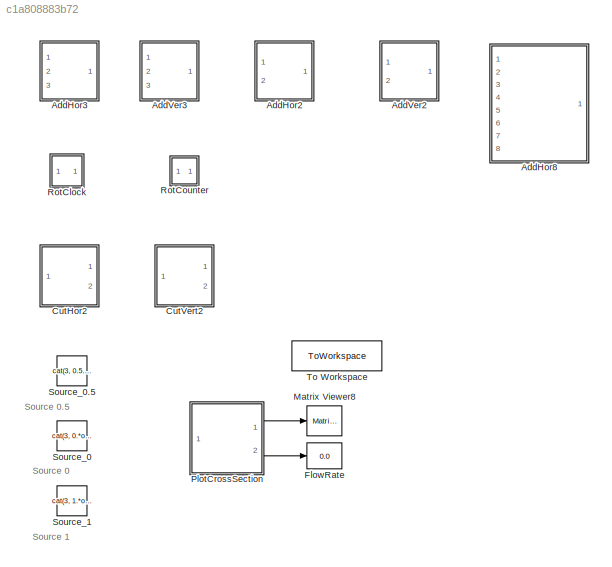
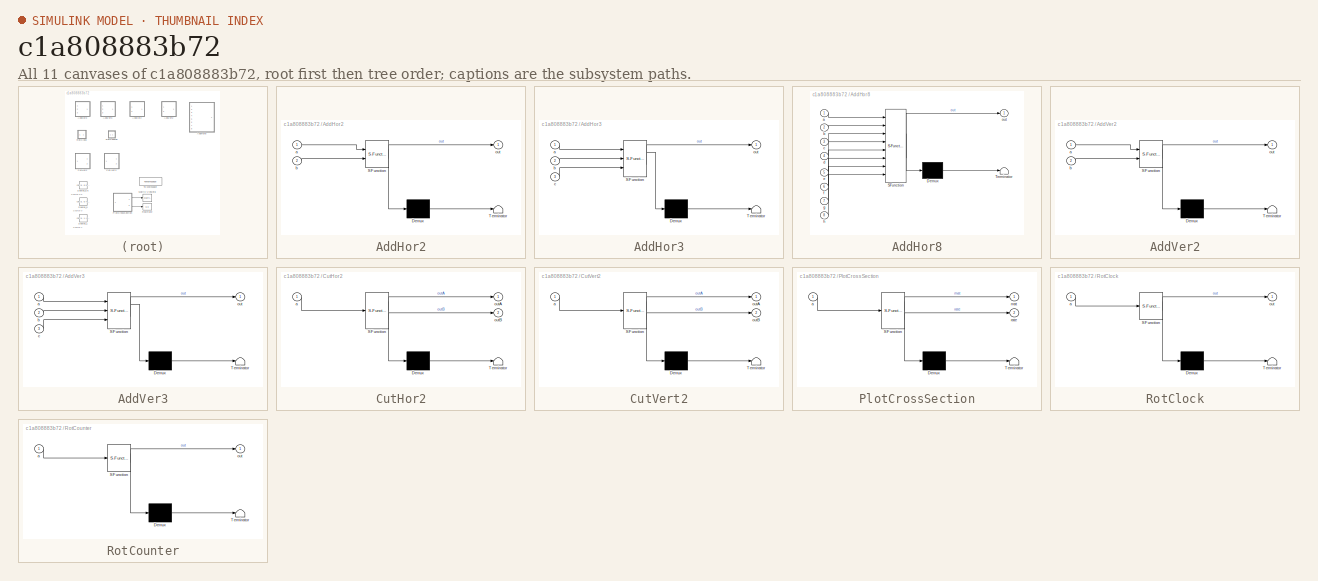
[diagram: thumbnail index - all 11 canvases of the model, root first then tree order]
MODEL slx_c1a808883b72
KIND library
CONFIG AbsTol = auto
CONFIG EnableMultiTasking = off
CONFIG FixedStep = auto
CONFIG MaxStep = auto
CONFIG MinStep = auto
CONFIG RelTol = 1e-3
CONFIG SampleTimeConstraint = Unconstrained
CONFIG SolverName = VariableStepAuto
CONFIG StartTime = 0.0
CONFIG StopTime = 10.0
BLOCK [SubSystem] AddHor2
  ErrorFcn = Stateflow.Translate.translate
  PermitHierarchicalResolution = ExplicitOnly
  Ports = [2, 1]
  RequestExecContextInheritance = off
  SFBlockType = MATLAB Function
  ShowPortLabels = none
  TreatAsAtomicUnit = on
BLOCK [Demux] AddHor2/ Demux 
  Outputs = 1
  Ports = [1, 1]
BLOCK [S-Function] AddHor2/ SFunction 
  EnableBusSupport = off
  FunctionName = sf_sfun
  PortCounts = [2 2]
  Ports = [2, 2]
  SFcnIsStateOwnerBlock = off
  SFunctionDeploymentMode = off
  Tag = Stateflow S-Function 1
BLOCK [Terminator] AddHor2/ Terminator 
BLOCK [Inport] AddHor2/a
BLOCK [Inport] AddHor2/b
  Port = 2
BLOCK [Outport] AddHor2/out
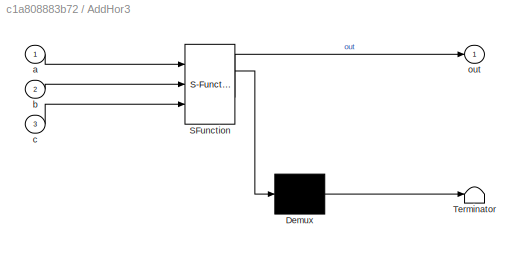
BLOCK [SubSystem] AddHor3
  ErrorFcn = Stateflow.Translate.translate
  PermitHierarchicalResolution = ExplicitOnly
  Ports = [3, 1]
  RequestExecContextInheritance = off
  SFBlockType = MATLAB Function
  ShowPortLabels = none
  TreatAsAtomicUnit = on
BLOCK [Demux] AddHor3/ Demux 
  Outputs = 1
  Ports = [1, 1]
BLOCK [S-Function] AddHor3/ SFunction 
  EnableBusSupport = off
  FunctionName = sf_sfun
  PortCounts = [3 2]
  Ports = [3, 2]
  SFcnIsStateOwnerBlock = off
  SFunctionDeploymentMode = off
  Tag = Stateflow S-Function 10
BLOCK [Terminator] AddHor3/ Terminator 
BLOCK [Inport] AddHor3/a
BLOCK [Inport] AddHor3/b
  Port = 2
BLOCK [Inport] AddHor3/c
  Port = 3
BLOCK [Outport] AddHor3/out
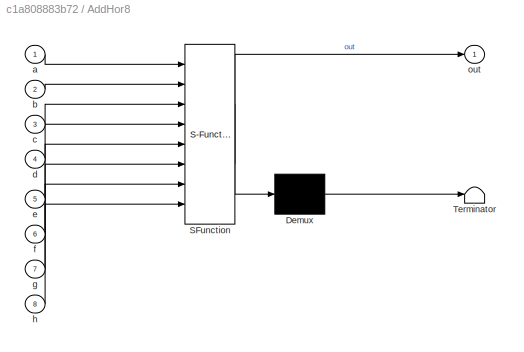
BLOCK [SubSystem] AddHor8
  ErrorFcn = Stateflow.Translate.translate
  PermitHierarchicalResolution = ExplicitOnly
  Ports = [8, 1]
  RequestExecContextInheritance = off
  SFBlockType = MATLAB Function
  ShowPortLabels = none
  TreatAsAtomicUnit = on
BLOCK [Demux] AddHor8/ Demux 
  Outputs = 1
  Ports = [1, 1]
BLOCK [S-Function] AddHor8/ SFunction 
  EnableBusSupport = off
  FunctionName = sf_sfun
  PortCounts = [8 2]
  Ports = [8, 2]
  SFcnIsStateOwnerBlock = off
  SFunctionDeploymentMode = off
  Tag = Stateflow S-Function 3
BLOCK [Terminator] AddHor8/ Terminator 
BLOCK [Inport] AddHor8/a
BLOCK [Inport] AddHor8/b
  Port = 2
BLOCK [Inport] AddHor8/c
  Port = 3
BLOCK [Inport] AddHor8/d
  Port = 4
BLOCK [Inport] AddHor8/e
  Port = 5
BLOCK [Inport] AddHor8/f
  Port = 6
BLOCK [Inport] AddHor8/g
  Port = 7
BLOCK [Inport] AddHor8/h
  Port = 8
BLOCK [Outport] AddHor8/out
BLOCK [SubSystem] AddVer2
  ErrorFcn = Stateflow.Translate.translate
  PermitHierarchicalResolution = ExplicitOnly
  Ports = [2, 1]
  RequestExecContextInheritance = off
  SFBlockType = MATLAB Function
  ShowPortLabels = none
  TreatAsAtomicUnit = on
BLOCK [Demux] AddVer2/ Demux 
  Outputs = 1
  Ports = [1, 1]
BLOCK [S-Function] AddVer2/ SFunction 
  EnableBusSupport = off
  FunctionName = sf_sfun
  PortCounts = [2 2]
  Ports = [2, 2]
  SFcnIsStateOwnerBlock = off
  SFunctionDeploymentMode = off
  Tag = Stateflow S-Function 2
BLOCK [Terminator] AddVer2/ Terminator 
BLOCK [Inport] AddVer2/a
BLOCK [Inport] AddVer2/b
  Port = 2
BLOCK [Outport] AddVer2/out
BLOCK [SubSystem] AddVer3
  ErrorFcn = Stateflow.Translate.translate
  PermitHierarchicalResolution = ExplicitOnly
  Ports = [3, 1]
  RequestExecContextInheritance = off
  SFBlockType = MATLAB Function
  ShowPortLabels = none
  TreatAsAtomicUnit = on
BLOCK [Demux] AddVer3/ Demux 
  Outputs = 1
  Ports = [1, 1]
BLOCK [S-Function] AddVer3/ SFunction 
  EnableBusSupport = off
  FunctionName = sf_sfun
  PortCounts = [3 2]
  Ports = [3, 2]
  SFcnIsStateOwnerBlock = off
  SFunctionDeploymentMode = off
  Tag = Stateflow S-Function 15
BLOCK [Terminator] AddVer3/ Terminator 
BLOCK [Inport] AddVer3/a
BLOCK [Inport] AddVer3/b
  Port = 2
BLOCK [Inport] AddVer3/c
  Port = 3
BLOCK [Outport] AddVer3/out
BLOCK [SubSystem] CutHor2
  ErrorFcn = Stateflow.Translate.translate
  PermitHierarchicalResolution = ExplicitOnly
  Ports = [1, 2]
  RequestExecContextInheritance = off
  SFBlockType = MATLAB Function
  ShowPortLabels = none
  TreatAsAtomicUnit = on
BLOCK [Demux] CutHor2/ Demux 
  Outputs = 1
  Ports = [1, 1]
BLOCK [S-Function] CutHor2/ SFunction 
  EnableBusSupport = off
  FunctionName = sf_sfun
  PortCounts = [1 3]
  Ports = [1, 3]
  SFcnIsStateOwnerBlock = off
  SFunctionDeploymentMode = off
  Tag = Stateflow S-Function 12
BLOCK [Terminator] CutHor2/ Terminator 
BLOCK [Inport] CutHor2/a
BLOCK [Outport] CutHor2/outA
BLOCK [Outport] CutHor2/outB
  Port = 2
BLOCK [SubSystem] CutVert2
  ErrorFcn = Stateflow.Translate.translate
  PermitHierarchicalResolution = ExplicitOnly
  Ports = [1, 2]
  RequestExecContextInheritance = off
  SFBlockType = MATLAB Function
  TreatAsAtomicUnit = on
BLOCK [Demux] CutVert2/ Demux 
  Outputs = 1
  Ports = [1, 1]
BLOCK [S-Function] CutVert2/ SFunction 
  EnableBusSupport = off
  FunctionName = sf_sfun
  PortCounts = [1 3]
  Ports = [1, 3]
  SFcnIsStateOwnerBlock = off
  SFunctionDeploymentMode = off
  Tag = Stateflow S-Function 17
BLOCK [Terminator] CutVert2/ Terminator 
BLOCK [Inport] CutVert2/a
BLOCK [Outport] CutVert2/outA
BLOCK [Outport] CutVert2/outB
  Port = 2
BLOCK [Display] FlowRate
  Decimation = 1
  Ports = [1]
BLOCK [Reference] Matrix Viewer8  REF=dspobslib/Matrix
Viewer
  Ports = [1]
  SourceBlock = dspobslib/Matrix\nViewer
  SourceProductBaseCode = DS
  SourceType = Matrix Viewer
BLOCK [SubSystem] PlotCrossSection
  ErrorFcn = Stateflow.Translate.translate
  PermitHierarchicalResolution = ExplicitOnly
  Ports = [1, 2]
  RequestExecContextInheritance = off
  SFBlockType = MATLAB Function
  ShowPortLabels = none
  TreatAsAtomicUnit = on
BLOCK [Demux] PlotCrossSection/ Demux 
  Outputs = 1
  Ports = [1, 1]
BLOCK [S-Function] PlotCrossSection/ SFunction 
  EnableBusSupport = off
  FunctionName = sf_sfun
  PortCounts = [1 3]
  Ports = [1, 3]
  SFcnIsStateOwnerBlock = off
  SFunctionDeploymentMode = off
  Tag = Stateflow S-Function 16
BLOCK [Terminator] PlotCrossSection/ Terminator 
BLOCK [Inport] PlotCrossSection/a
BLOCK [Outport] PlotCrossSection/mat
BLOCK [Outport] PlotCrossSection/rate
  Port = 2
BLOCK [SubSystem] RotClock
  ErrorFcn = Stateflow.Translate.translate
  PermitHierarchicalResolution = ExplicitOnly
  Ports = [1, 1]
  RequestExecContextInheritance = off
  SFBlockType = MATLAB Function
  TreatAsAtomicUnit = on
BLOCK [Demux] RotClock/ Demux 
  Outputs = 1
  Ports = [1, 1]
BLOCK [S-Function] RotClock/ SFunction 
  EnableBusSupport = off
  FunctionName = sf_sfun
  PortCounts = [1 2]
  Ports = [1, 2]
  SFcnIsStateOwnerBlock = off
  SFunctionDeploymentMode = off
  Tag = Stateflow S-Function 7
BLOCK [Terminator] RotClock/ Terminator 
BLOCK [Inport] RotClock/a
BLOCK [Outport] RotClock/out
BLOCK [SubSystem] RotCounter
  ErrorFcn = Stateflow.Translate.translate
  PermitHierarchicalResolution = ExplicitOnly
  Ports = [1, 1]
  RequestExecContextInheritance = off
  SFBlockType = MATLAB Function
  TreatAsAtomicUnit = on
BLOCK [Demux] RotCounter/ Demux 
  Outputs = 1
  Ports = [1, 1]
BLOCK [S-Function] RotCounter/ SFunction 
  EnableBusSupport = off
  FunctionName = sf_sfun
  PortCounts = [1 2]
  Ports = [1, 2]
  SFcnIsStateOwnerBlock = off
  SFunctionDeploymentMode = off
  Tag = Stateflow S-Function 9
BLOCK [Terminator] RotCounter/ Terminator 
BLOCK [Inport] RotCounter/a
BLOCK [Outport] RotCounter/out
BLOCK [Constant] Source_0
  Value = cat(3, 0.*ones(res,res), 1.0.*ones(res,res))
  VectorParams1D = off
BLOCK [Constant] Source_0.5
  Value = cat(3, 0.5.*ones(res,res), 1.0*ones(res,res))
  VectorParams1D = off
BLOCK [Constant] Source_1
  Value = cat(3, 1.*ones(res,res), 1.0*ones(res,res))
  VectorParams1D = off
BLOCK [ToWorkspace] To Workspace
  FixptAsFi = on
  MaxDataPoints = inf
  Ports = [1]
  SampleTime = 51
  VariableName = extrudateArray
ANNOTATION (root): Source 0
ANNOTATION (root): Source 0.5
ANNOTATION (root): Source 1
LINE PlotCrossSection:1 -> Matrix Viewer8:1
LINE PlotCrossSection:2 -> FlowRate:1
CHART AddHor2 states=1 transitions=1
  STATE_LABEL 'eML_blk_kernel()'
  STATE_LABEL 'SCRIPT:\nfunction out = add2Hor(a,b)\n%% Version and general code information\n% Horizontal Addition Updated 2022-04-07\n% Inputs \n    % Two 3D arrays\n% Outputs\n    %3D array\n    %First 2D array (out(:,:,1)) contains the pattern.\n    %last element (out(:,:,2)) contains the flow rate, should be a\n    %constant.\n\n%% Determining preliminary variables\nresolution = size(a,1);  %Calculates resolution based ...<+2678ch>'
CHART AddVer2 states=1 transitions=1
  STATE_LABEL 'eML_blk_kernel()'
  STATE_LABEL 'SCRIPT:\nfunction out = add2Ver(a,b)\n%% Version and general code information\n%Add Vertical V 1.0 Updated 2022-04-07\n% Inputs \n    % Two 3D arrays\n% Outputs\n    %One 3D array\n    %First 2D array (out(:,:,1)) contains the pattern.\n    %last element contains the flow rate (out(:,:,2)), should be a\n    %constant.\n\n%% Determining preliminary variables\nresolution = size(a,1); %Calculates resolution based...<+2606ch>'
CHART AddHor8 states=1 transitions=1
  STATE_LABEL 'eML_blk_kernel()'
  STATE_LABEL 'SCRIPT:\nfunction out = add8Hor(a,b,c,d,e,f,g,h)\n%% Version and general code information\n%Horizontal Addition V 1.0 Updated 2022-04-07\n% Inputs\n    %Eight 3D arrays\n% Outputs\n    %3D array \n    % First 2D array (out(:,:,1)) contains the pattern\n    %Last element (out(:,:,2)) contains the flow rates, should be a\n    %constant\n\n%% Determine preliminary variabes\nresolution = size(a,1); %Calculates res...<+3608ch>'
CHART RotClock states=1 transitions=1
  STATE_LABEL 'eML_blk_kernel()'
  STATE_LABEL 'SCRIPT:\nfunction out = rotClock(a)\n%% Version and general code information. \n%Rotating Clockwise Block V 1.0 Updated 2022-04-07\n% Inputs:\n    %3D array with pattern a(:,:,1) and flow rate a(:,:2)\n%Outputs:\n    %3D array\n            %First 2D array (i.e., out(:,:,1)) contains the pattern\n            %Last element contains the flow rate (i.e. out(:,:,2)), should be a\n            %constant value.\n%% ...<+466ch>'
CHART RotCounter states=1 transitions=1
  STATE_LABEL 'eML_blk_kernel()'
  STATE_LABEL 'SCRIPT:\nfunction out = rotCounter(a)\n%% Version and general code information\n%Rotating Counter Clockwise V 1.0 Updated 2022-31-3\n% Inputs:\n    %3D array with pattern a(:,:,1) and flow rate a(:,:2)\n%Outputs:\n    %3D array\n        %First 2D array (i.e., out(:,:,1)) contains the pattern\n        %Last element contains the flow rate (i.e. out(:,:,2)), should be a\n        %constant value.\n%% Determining...<+413ch>'
CHART AddHor3 states=1 transitions=1
  STATE_LABEL 'eML_blk_kernel()'
  STATE_LABEL 'SCRIPT:\nfunction out = add3Hor(a,b,c)\n%% Version and general code information\n%Horizontal Adding V 1.0 Updated 2022-04-07\n% Inputs \n    % Three 3D arrays\n% Outputs\n    %3D array\n    %First 2D array (out(:,:,1)) contains the pattern.\n    %last element (out(:,:,2)) contains the flow rate, should be a\n    %constant.\n\n%% Determining preliminary variables\nresolution = size(a,1); %Calculates resolution ...<+3222ch>'
CHART CutHor2 states=1 transitions=1
  STATE_LABEL 'eML_blk_kernel()'
  STATE_LABEL 'SCRIPT:\nfunction [outA, outB] = cutHor(a)\n%% Version and general code information\n%Cut Horizontal V 1.0 Updated 2022-04-07\n% Inputs \n    % One 3D array\n% Outputs\n    %Two 3D arrays\n    %First 2D array (out(:,:,1)) contains the pattern.\n    %last element contains the flow rate (out(:,:,2)), should be a\n    %constant.\n\n%% Determining preliminary variables\nresolution = size(a,1); %Calculates resoluti...<+2500ch>'
CHART AddVer3 states=1 transitions=1
  STATE_LABEL 'eML_blk_kernel()'
  STATE_LABEL 'SCRIPT:\nfunction out = add3Ver(a,b,c)\n%% Version and general code information\n%Add Vertical V 1.0 Updated 2022-04-07\n% Inputs \n    % Three 3D arrays\n% Outputs\n    %One 3D arrays\n    %First 2D array (out(:,:,1)) contains the pattern.\n    %last element contains the flow rate (out(:,:,2)), should be a\n    %constant.\n\n%% Determining preliminary variables\nresolution = size(a,1); %Calculates resolution ...<+3156ch>'
CHART PlotCrossSection states=1 transitions=1
  STATE_LABEL 'eML_blk_kernel()'
  STATE_LABEL 'SCRIPT:\nfunction [mat,rate]=   extract(a)\n%% Version and general code information\n%Plot Cross Section V.10 Updated 2022-04-11\n%Inputs\n    %One 3D array\n%Outputs\n    %Two arrays\n    % mat contains the pattern matrix a(:,:,1)\n    %rate contains the total flow rate a(1,1,2)\n%% Output variables\nmat = double(a(:,:,1)); % The pattern matrix. Take all the rows and columns of the first 3rd dimension and a...<+173ch>'
CHART CutVert2 states=1 transitions=1
  STATE_LABEL 'eML_blk_kernel()'
  STATE_LABEL 'SCRIPT:\nfunction [outA, outB] = cutVer(a)\n%% Version and general code information\n%Cut Vertical V 1.0 Updated 2022-04-07\n% Inputs \n    % One 3D array\n% Outputs\n    %Two 3D arrays\n    %First 2D array (out(:,:,1)) contains the pattern.\n    %last element contains the flow rate (out(:,:,2)), should be a\n    %constant.\n\n%% Determining preliminary variables\nresolution = size(a,1); %Calculates resolution...<+2464ch>'
CHART  states=0 transitions=0
CHART  states=0 transitions=0
CHART  states=0 transitions=0
CHART  states=0 transitions=0
CHART  states=0 transitions=0
CHART  states=0 transitions=0
CHART  states=0 transitions=0
CHART  states=0 transitions=0
CHART  states=0 transitions=0
CHART  states=0 transitions=0
